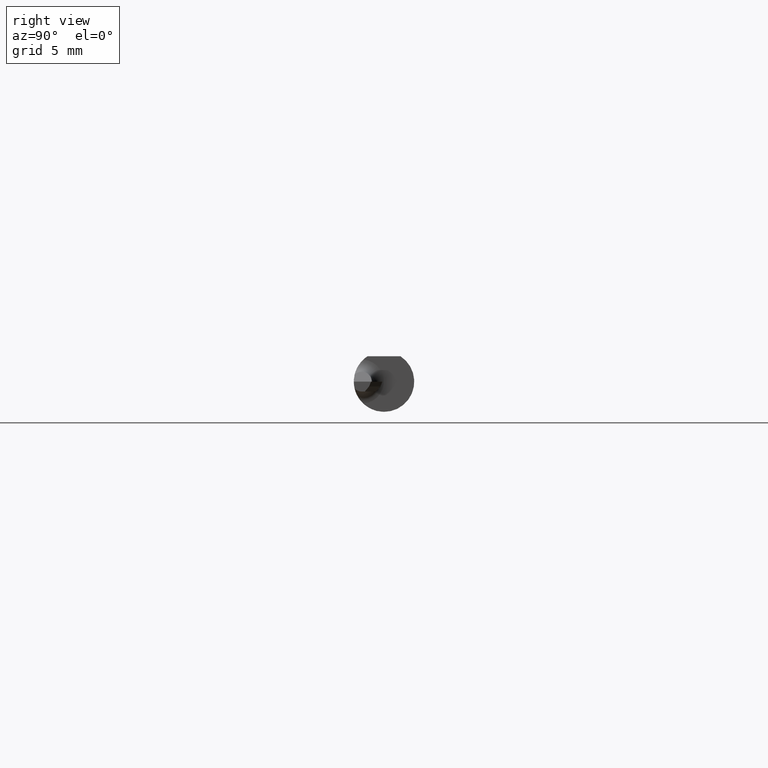
[diagram: clean part render]
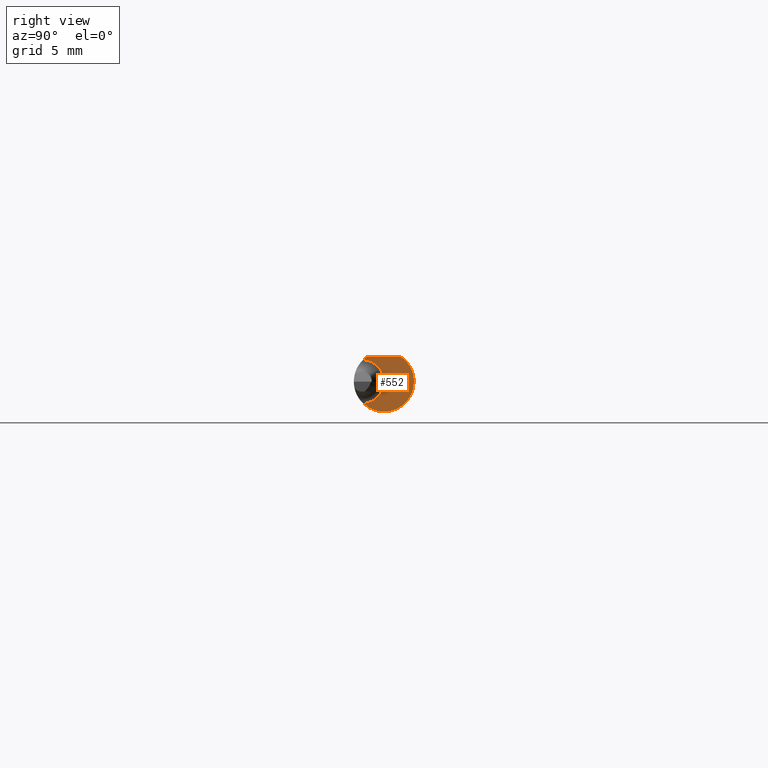
[diagram: same view with one face highlighted and labeled with its STEP entity id]
A machine part, right view. The second image highlights one B-rep face of the part: STEP entity #552.
In plain terms, the highlighted planar face has unit normal (1, 0, 0).
Its self-contained STEP definition (entity closure, byte-faithful):
#2 = EDGE_CURVE ( 'NONE', #551, #29, #622, .T. ) ;
#7 = VERTEX_POINT ( 'NONE', #149 ) ;
#9 = LINE ( 'NONE', #332, #424 ) ;
#24 = EDGE_CURVE ( 'NONE', #7, #266, #655, .T. ) ;
#29 = VERTEX_POINT ( 'NONE', #436 ) ;
#45 = CARTESIAN_POINT ( 'NONE',  ( 1.300000000000000044, -0.04585000000000004350, 0.000000000000000000 ) ) ;
#93 = DIRECTION ( 'NONE',  ( 0.000000000000000000, -1.000000000000000000, 0.000000000000000000 ) ) ;
#106 = DIRECTION ( 'NONE',  ( -9.929577671863619690E-17, 1.000000000000000000, 0.000000000000000000 ) ) ;
#133 = ORIENTED_EDGE ( 'NONE', *, *, #150, .T. ) ;
#139 = CARTESIAN_POINT ( 'NONE',  ( 1.300000000000000044, -0.03386738844375225543, 0.05234999999999997294 ) ) ;
#149 = CARTESIAN_POINT ( 'NONE',  ( 1.300000000000000044, -0.04274258451472189718, -0.04539376575039635875 ) ) ;
#150 = EDGE_CURVE ( 'NONE', #29, #7, #643, .T. ) ;
#151 = DIRECTION ( 'NONE',  ( -9.929577671863619690E-17, 1.000000000000000000, 0.000000000000000000 ) ) ;
#165 = AXIS2_PLACEMENT_3D ( 'NONE', #263, #696, #700 ) ;
#194 = ORIENTED_EDGE ( 'NONE', *, *, #24, .T. ) ;
#263 = CARTESIAN_POINT ( 'NONE',  ( 1.300000000000000044, 0.000000000000000000, 0.000000000000000000 ) ) ;
#266 = VERTEX_POINT ( 'NONE', #398 ) ;
#296 = ORIENTED_EDGE ( 'NONE', *, *, #334, .F. ) ;
#332 = CARTESIAN_POINT ( 'NONE',  ( 1.300000000000000044, 0.06234999999999996795, 0.05234999999999997294 ) ) ;
#334 = EDGE_CURVE ( 'NONE', #551, #266, #9, .T. ) ;
#366 = DIRECTION ( 'NONE',  ( 1.000000000000000000, 9.929577671863619690E-17, 0.000000000000000000 ) ) ;
#373 = DIRECTION ( 'NONE',  ( 1.000000000000000000, 9.929577671863619690E-17, 0.000000000000000000 ) ) ;
#398 = CARTESIAN_POINT ( 'NONE',  ( 1.300000000000000044, 0.03386738844375224849, 0.05234999999999997294 ) ) ;
#422 = DIRECTION ( 'NONE',  ( -1.000000000000000000, -9.929577671863619690E-17, -0.000000000000000000 ) ) ;
#424 = VECTOR ( 'NONE', #106, 39.37007874015748143 ) ;
#429 = CARTESIAN_POINT ( 'NONE',  ( 1.300000000000000044, 0.000000000000000000, 0.000000000000000000 ) ) ;
#431 = FACE_OUTER_BOUND ( 'NONE', #626, .T. ) ;
#436 = CARTESIAN_POINT ( 'NONE',  ( 1.300000000000000044, -0.04274258451472189718, 0.04539376575039635875 ) ) ;
#437 = AXIS2_PLACEMENT_3D ( 'NONE', #429, #373, #650 ) ;
#460 = ORIENTED_EDGE ( 'NONE', *, *, #2, .T. ) ;
#519 = AXIS2_PLACEMENT_3D ( 'NONE', #45, #422, #93 ) ;
#551 = VERTEX_POINT ( 'NONE', #139 ) ;
#552 = ADVANCED_FACE ( 'NONE', ( #431 ), #595, .T. ) ;
#556 = AXIS2_PLACEMENT_3D ( 'NONE', #652, #366, #151 ) ;
#595 = PLANE ( 'NONE',  #556 ) ;
#622 = CIRCLE ( 'NONE', #437, 0.06235000000000000264 ) ;
#626 = EDGE_LOOP ( 'NONE', ( #194, #296, #460, #133 ) ) ;
#643 = CIRCLE ( 'NONE', #519, 0.04550000000000002653 ) ;
#650 = DIRECTION ( 'NONE',  ( 0.000000000000000000, 1.000000000000000000, 0.000000000000000000 ) ) ;
#652 = CARTESIAN_POINT ( 'NONE',  ( 1.300000000000000044, 0.06234999999999997489, 0.000000000000000000 ) ) ;
#655 = CIRCLE ( 'NONE', #165, 0.06235000000000000264 ) ;
#696 = DIRECTION ( 'NONE',  ( 1.000000000000000000, 9.929577671863619690E-17, 0.000000000000000000 ) ) ;
#700 = DIRECTION ( 'NONE',  ( 0.000000000000000000, 1.000000000000000000, 0.000000000000000000 ) ) ;